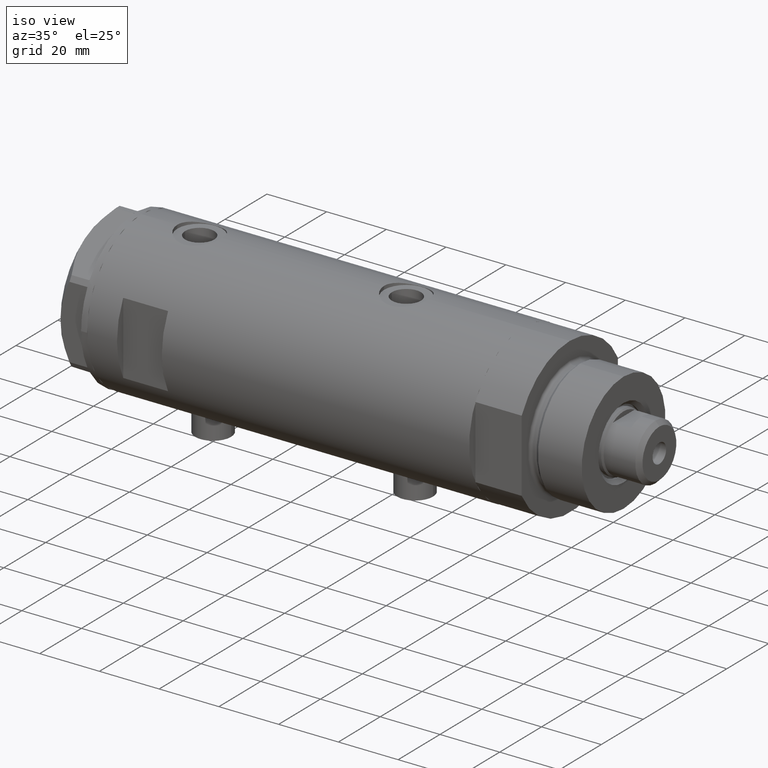
[diagram: clean part render]
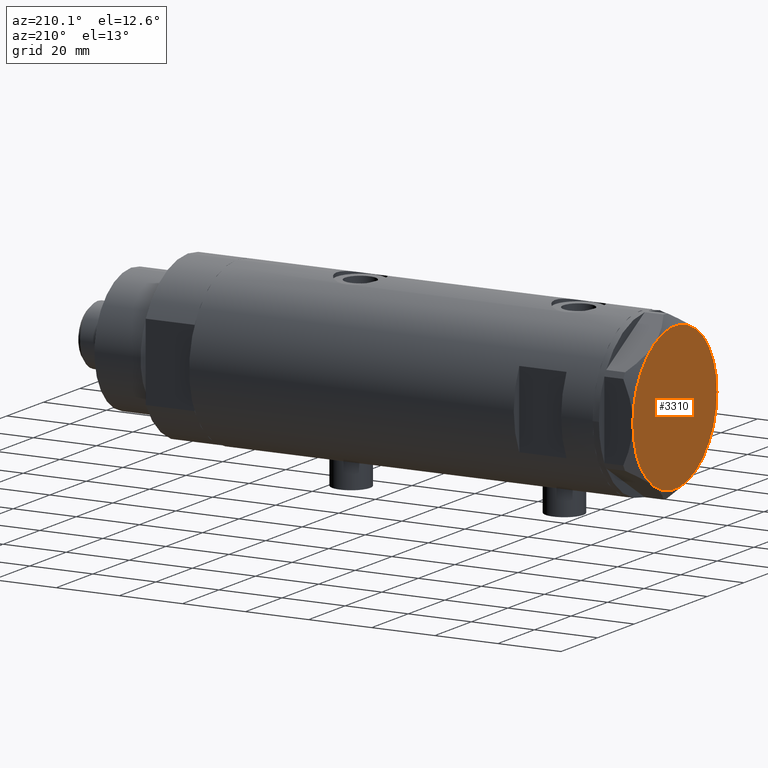
[diagram: tour spotlight — one face highlighted and labeled with its STEP entity id]
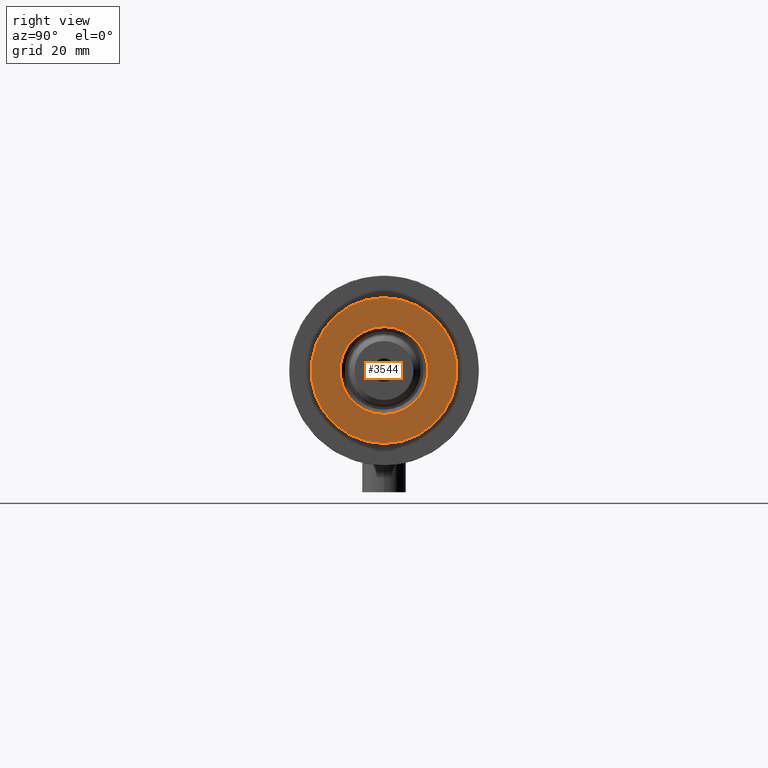
[diagram: tour spotlight — one face highlighted and labeled with its STEP entity id]
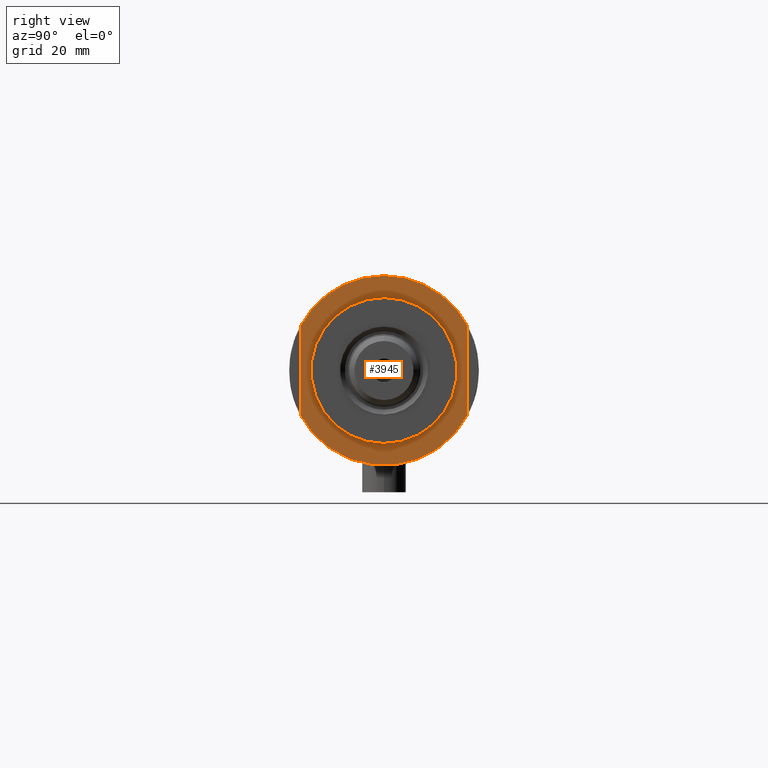
[diagram: tour spotlight — one face highlighted and labeled with its STEP entity id]
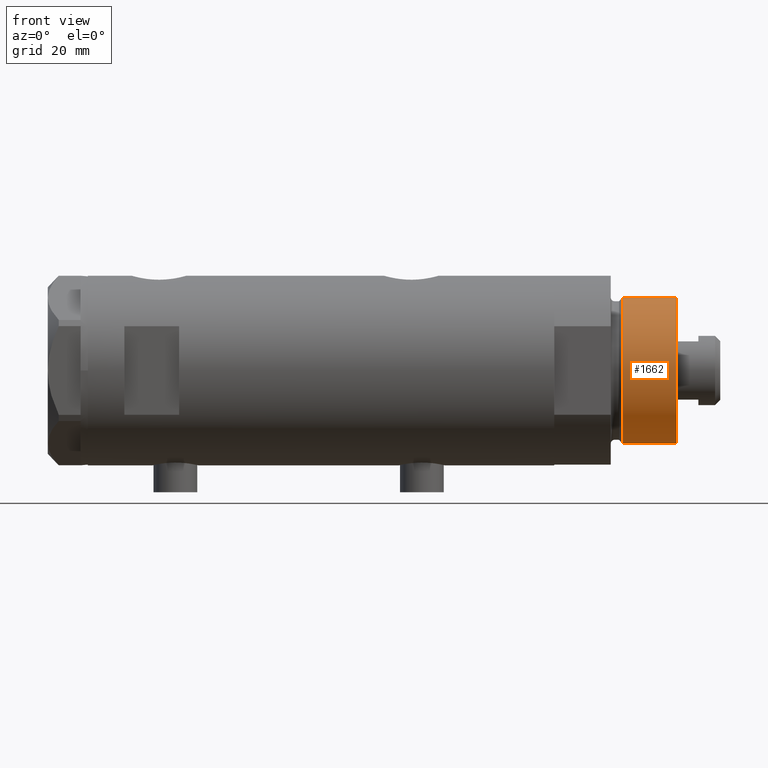
[diagram: tour spotlight — one face highlighted and labeled with its STEP entity id]
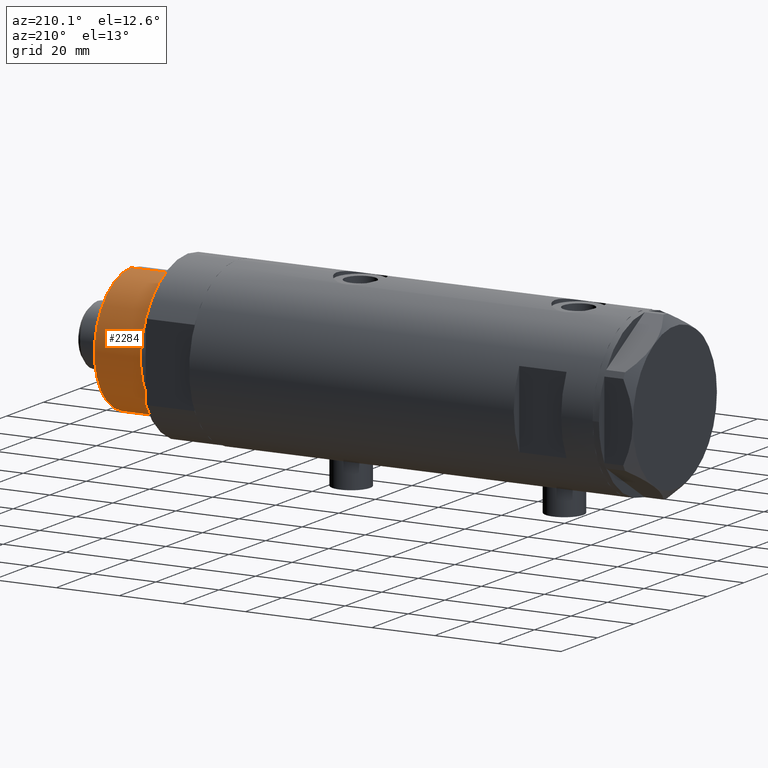
[diagram: tour spotlight — one face highlighted and labeled with its STEP entity id]
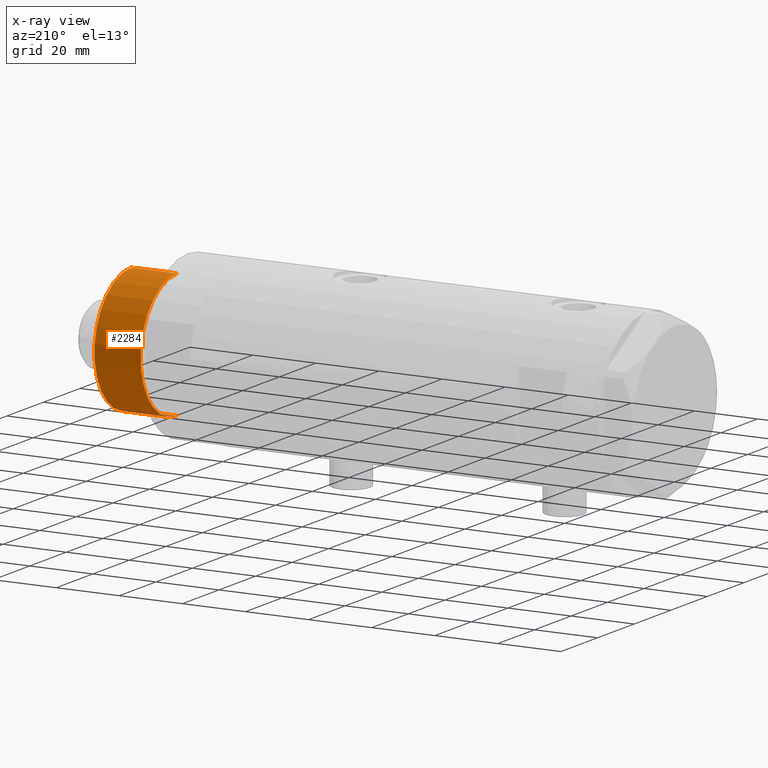
[diagram: x-ray of the same camera — body ghosted, this tour face saturated]
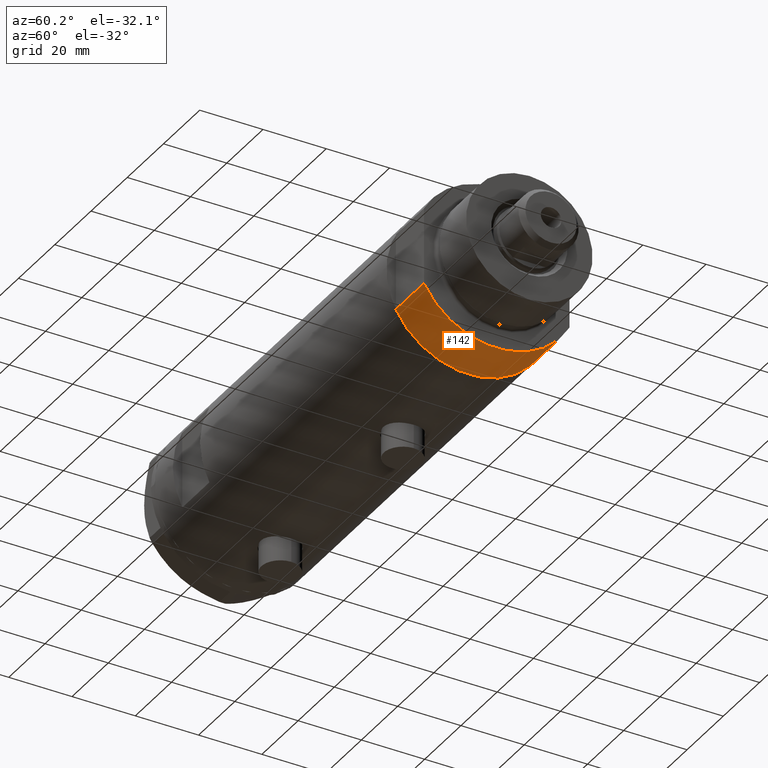
[diagram: tour spotlight — one face highlighted and labeled with its STEP entity id]
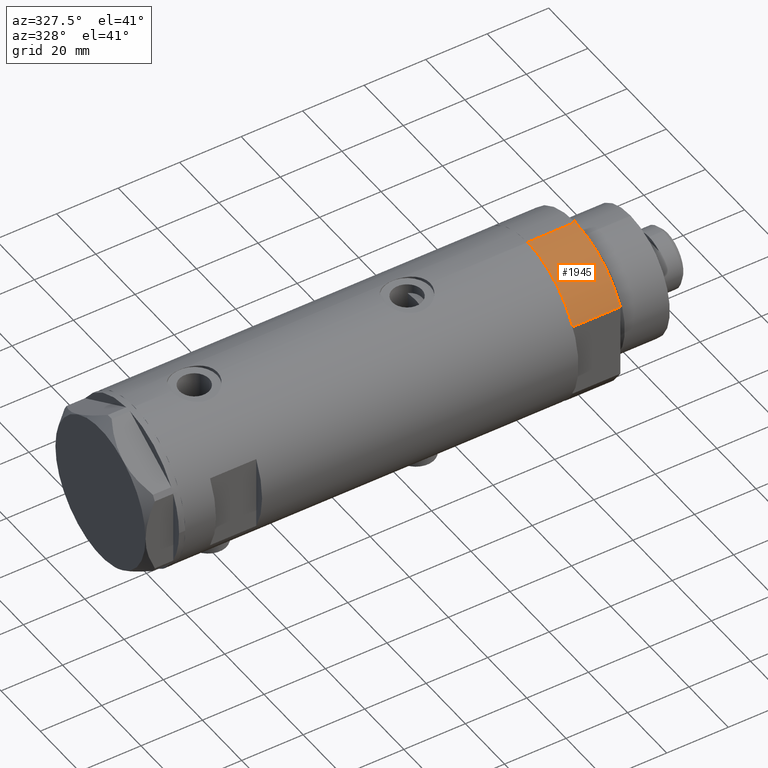
[diagram: tour spotlight — one face highlighted and labeled with its STEP entity id]
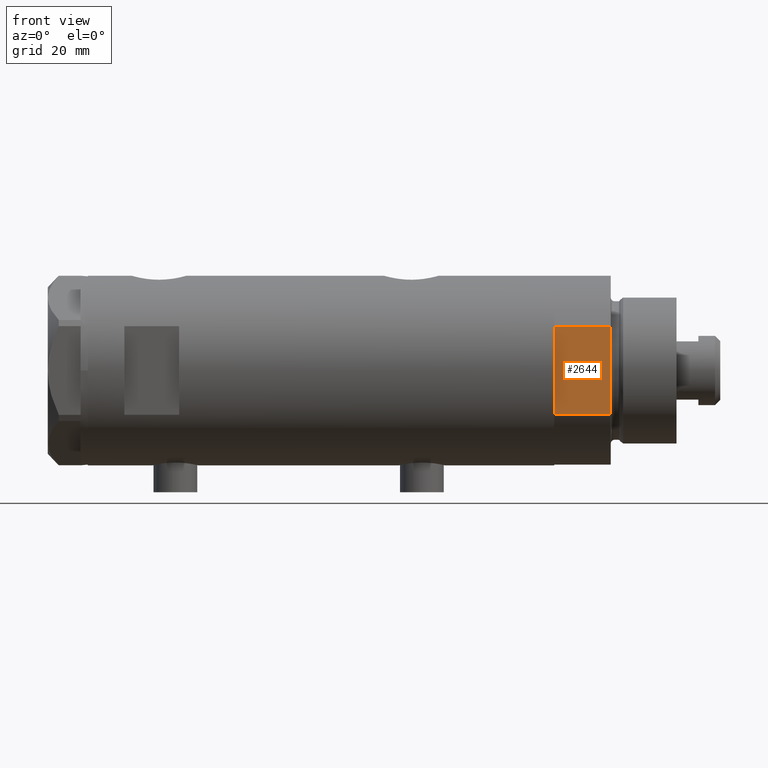
[diagram: tour spotlight — one face highlighted and labeled with its STEP entity id]
A machine part: a face-by-face anatomy tour. The part has 134 B-rep faces; the first image is the clean iso view, then the 8 largest visible faces are spotlighted one at a time (largest first), each with its STEP entity span.

Face 1 — auxiliary view, entity #3310. In plain terms, the highlighted planar face has unit normal (-1, -0, 0).
Definition (entity closure, byte-faithful):
#209 = CIRCLE ( 'NONE', #4621, 23.00000000000004619 ) ;
#287 = CARTESIAN_POINT ( 'NONE',  ( 0.000000000000000000, 0.000000000000000000, 9.000000000000000000 ) ) ;
#288 = VERTEX_POINT ( 'NONE', #4019 ) ;
#321 = ORIENTED_EDGE ( 'NONE', *, *, #4393, .T. ) ;
#322 = EDGE_CURVE ( 'NONE', #2935, #3134, #4452, .T. ) ;
#357 = DIRECTION ( 'NONE',  ( 0.000000000000000000, 0.000000000000000000, 1.000000000000000000 ) ) ;
#380 = FACE_OUTER_BOUND ( 'NONE', #1587, .T. ) ;
#682 = DIRECTION ( 'NONE',  ( 1.000000000000000000, 0.000000000000000000, 0.000000000000000000 ) ) ;
#768 = CIRCLE ( 'NONE', #4006, 23.00000000000004619 ) ;
#856 = DIRECTION ( 'NONE',  ( 1.000000000000000000, 0.000000000000000000, 0.000000000000000000 ) ) ;
#944 = EDGE_CURVE ( 'NONE', #4516, #288, #995, .T. ) ;
#995 = CIRCLE ( 'NONE', #2346, 23.00000000000004619 ) ;
#1012 = EDGE_CURVE ( 'NONE', #288, #3992, #4841, .T. ) ;
#1145 = DIRECTION ( 'NONE',  ( 0.000000000000000000, 0.000000000000000000, 1.000000000000000000 ) ) ;
#1187 = EDGE_CURVE ( 'NONE', #3134, #2269, #209, .T. ) ;
#1481 = ORIENTED_EDGE ( 'NONE', *, *, #1012, .T. ) ;
#1521 = AXIS2_PLACEMENT_3D ( 'NONE', #3432, #3402, #4186 ) ;
#1535 = CARTESIAN_POINT ( 'NONE',  ( 0.000000000000000000, 0.000000000000000000, 9.000000000000000000 ) ) ;
#1587 = EDGE_LOOP ( 'NONE', ( #2373, #2905, #3850, #1481, #321, #4648 ) ) ;
#1894 = PLANE ( 'NONE',  #4808 ) ;
#1927 = EDGE_CURVE ( 'NONE', #2269, #4516, #768, .T. ) ;
#2016 = CARTESIAN_POINT ( 'NONE',  ( 0.000000000000000000, 0.000000000000000000, 9.000000000000000000 ) ) ;
#2151 = CARTESIAN_POINT ( 'NONE',  ( 11.49999999999990408, 19.91858428704219364, 9.000000000000000000 ) ) ;
#2269 = VERTEX_POINT ( 'NONE', #2858 ) ;
#2319 = CARTESIAN_POINT ( 'NONE',  ( 11.50000000000018296, -19.91858428704203732, 9.000000000000000000 ) ) ;
#2326 = CIRCLE ( 'NONE', #1521, 23.00000000000004619 ) ;
#2346 = AXIS2_PLACEMENT_3D ( 'NONE', #2016, #3562, #856 ) ;
#2373 = ORIENTED_EDGE ( 'NONE', *, *, #1187, .T. ) ;
#2449 = CARTESIAN_POINT ( 'NONE',  ( -11.49999999999990585, -19.91858428704219364, 9.000000000000000000 ) ) ;
#2858 = CARTESIAN_POINT ( 'NONE',  ( 22.99999999999995026, 2.373657066004705010E-13, 9.000000000000000000 ) ) ;
#2905 = ORIENTED_EDGE ( 'NONE', *, *, #1927, .T. ) ;
#2917 = CARTESIAN_POINT ( 'NONE',  ( 0.000000000000000000, 0.000000000000000000, 9.000000000000000000 ) ) ;
#2935 = VERTEX_POINT ( 'NONE', #2449 ) ;
#3029 = CARTESIAN_POINT ( 'NONE',  ( 0.000000000000000000, 0.000000000000000000, 9.000000000000000000 ) ) ;
#3034 = DIRECTION ( 'NONE',  ( 0.000000000000000000, 0.000000000000000000, 1.000000000000000000 ) ) ;
#3134 = VERTEX_POINT ( 'NONE', #2319 ) ;
#3208 = DIRECTION ( 'NONE',  ( 1.000000000000000000, 0.000000000000000000, 0.000000000000000000 ) ) ;
#3274 = AXIS2_PLACEMENT_3D ( 'NONE', #1535, #357, #3394 ) ;
#3310 = ADVANCED_FACE ( 'NONE', ( #380 ), #1894, .T. ) ;
#3360 = AXIS2_PLACEMENT_3D ( 'NONE', #4561, #3034, #4174 ) ;
#3394 = DIRECTION ( 'NONE',  ( 1.000000000000000000, 0.000000000000000000, 0.000000000000000000 ) ) ;
#3402 = DIRECTION ( 'NONE',  ( 0.000000000000000000, 0.000000000000000000, 1.000000000000000000 ) ) ;
#3432 = CARTESIAN_POINT ( 'NONE',  ( 0.000000000000000000, 0.000000000000000000, 9.000000000000000000 ) ) ;
#3562 = DIRECTION ( 'NONE',  ( 0.000000000000000000, 0.000000000000000000, 1.000000000000000000 ) ) ;
#3701 = DIRECTION ( 'NONE',  ( 0.000000000000000000, 0.000000000000000000, 1.000000000000000000 ) ) ;
#3850 = ORIENTED_EDGE ( 'NONE', *, *, #944, .T. ) ;
#3955 = DIRECTION ( 'NONE',  ( 0.000000000000000000, 0.000000000000000000, 1.000000000000000000 ) ) ;
#3992 = VERTEX_POINT ( 'NONE', #4013 ) ;
#4006 = AXIS2_PLACEMENT_3D ( 'NONE', #2917, #3955, #3208 ) ;
#4013 = CARTESIAN_POINT ( 'NONE',  ( -23.00000000000004619, -8.112498833180673323E-14, 9.000000000000000000 ) ) ;
#4019 = CARTESIAN_POINT ( 'NONE',  ( -11.50000000000004441, 19.91858428704211548, 9.000000000000000000 ) ) ;
#4170 = DIRECTION ( 'NONE',  ( 1.000000000000000000, 0.000000000000000000, -0.000000000000000000 ) ) ;
#4174 = DIRECTION ( 'NONE',  ( 1.000000000000000000, 0.000000000000000000, 0.000000000000000000 ) ) ;
#4186 = DIRECTION ( 'NONE',  ( 1.000000000000000000, 0.000000000000000000, 0.000000000000000000 ) ) ;
#4393 = EDGE_CURVE ( 'NONE', #3992, #2935, #2326, .T. ) ;
#4452 = CIRCLE ( 'NONE', #3274, 23.00000000000004619 ) ;
#4516 = VERTEX_POINT ( 'NONE', #2151 ) ;
#4561 = CARTESIAN_POINT ( 'NONE',  ( 0.000000000000000000, 0.000000000000000000, 9.000000000000000000 ) ) ;
#4621 = AXIS2_PLACEMENT_3D ( 'NONE', #287, #3701, #682 ) ;
#4648 = ORIENTED_EDGE ( 'NONE', *, *, #322, .T. ) ;
#4808 = AXIS2_PLACEMENT_3D ( 'NONE', #3029, #1145, #4170 ) ;
#4841 = CIRCLE ( 'NONE', #3360, 23.00000000000004619 ) ;

Face 2 — right view, entity #3544. In plain terms, the highlighted planar face has unit normal (1, 0, -0).
Definition (entity closure, byte-faithful):
#245 = FACE_OUTER_BOUND ( 'NONE', #2551, .T. ) ;
#259 = CIRCLE ( 'NONE', #2312, 12.05000000000000426 ) ;
#336 = CARTESIAN_POINT ( 'NONE',  ( 12.05000000000000426, 0.000000000000000000, 33.50000000000000000 ) ) ;
#378 = EDGE_CURVE ( 'NONE', #2653, #4059, #595, .T. ) ;
#528 = ORIENTED_EDGE ( 'NONE', *, *, #2534, .T. ) ;
#576 = CIRCLE ( 'NONE', #2712, 19.99999999999999645 ) ;
#595 = CIRCLE ( 'NONE', #2263, 12.05000000000000426 ) ;
#670 = ORIENTED_EDGE ( 'NONE', *, *, #4546, .T. ) ;
#1100 = CARTESIAN_POINT ( 'NONE',  ( 0.000000000000000000, 0.000000000000000000, 33.50000000000000000 ) ) ;
#1241 = DIRECTION ( 'NONE',  ( -0.000000000000000000, -0.000000000000000000, -1.000000000000000000 ) ) ;
#1320 = AXIS2_PLACEMENT_3D ( 'NONE', #3281, #4768, #2615 ) ;
#1336 = CARTESIAN_POINT ( 'NONE',  ( -12.05000000000000426, 1.475699392972560823E-15, 33.50000000000000000 ) ) ;
#1393 = VERTEX_POINT ( 'NONE', #1406 ) ;
#1406 = CARTESIAN_POINT ( 'NONE',  ( -19.99999999999999645, 0.000000000000000000, 33.50000000000000000 ) ) ;
#1554 = ORIENTED_EDGE ( 'NONE', *, *, #378, .T. ) ;
#1744 = PLANE ( 'NONE',  #4657 ) ;
#2104 = FACE_BOUND ( 'NONE', #3764, .T. ) ;
#2154 = CARTESIAN_POINT ( 'NONE',  ( 0.000000000000000000, 0.000000000000000000, 33.50000000000000000 ) ) ;
#2263 = AXIS2_PLACEMENT_3D ( 'NONE', #1100, #2609, #3775 ) ;
#2312 = AXIS2_PLACEMENT_3D ( 'NONE', #4601, #1241, #3888 ) ;
#2527 = DIRECTION ( 'NONE',  ( 0.000000000000000000, 0.000000000000000000, 1.000000000000000000 ) ) ;
#2534 = EDGE_CURVE ( 'NONE', #3514, #1393, #4319, .T. ) ;
#2551 = EDGE_LOOP ( 'NONE', ( #670, #528 ) ) ;
#2609 = DIRECTION ( 'NONE',  ( -0.000000000000000000, -0.000000000000000000, -1.000000000000000000 ) ) ;
#2615 = DIRECTION ( 'NONE',  ( 1.000000000000000000, 0.000000000000000000, 0.000000000000000000 ) ) ;
#2653 = VERTEX_POINT ( 'NONE', #336 ) ;
#2712 = AXIS2_PLACEMENT_3D ( 'NONE', #4649, #3951, #4611 ) ;
#3281 = CARTESIAN_POINT ( 'NONE',  ( 0.000000000000000000, 0.000000000000000000, 33.50000000000000000 ) ) ;
#3514 = VERTEX_POINT ( 'NONE', #4161 ) ;
#3544 = ADVANCED_FACE ( 'NONE', ( #2104, #245 ), #1744, .T. ) ;
#3654 = DIRECTION ( 'NONE',  ( 1.000000000000000000, 0.000000000000000000, -0.000000000000000000 ) ) ;
#3677 = EDGE_CURVE ( 'NONE', #4059, #2653, #259, .T. ) ;
#3764 = EDGE_LOOP ( 'NONE', ( #1554, #4175 ) ) ;
#3775 = DIRECTION ( 'NONE',  ( 1.000000000000000000, 0.000000000000000000, 0.000000000000000000 ) ) ;
#3888 = DIRECTION ( 'NONE',  ( 1.000000000000000000, 0.000000000000000000, 0.000000000000000000 ) ) ;
#3951 = DIRECTION ( 'NONE',  ( 0.000000000000000000, 0.000000000000000000, 1.000000000000000000 ) ) ;
#4059 = VERTEX_POINT ( 'NONE', #1336 ) ;
#4161 = CARTESIAN_POINT ( 'NONE',  ( 19.99999999999999645, 2.449293598294706119E-15, 33.50000000000000000 ) ) ;
#4175 = ORIENTED_EDGE ( 'NONE', *, *, #3677, .T. ) ;
#4319 = CIRCLE ( 'NONE', #1320, 19.99999999999999645 ) ;
#4546 = EDGE_CURVE ( 'NONE', #1393, #3514, #576, .T. ) ;
#4601 = CARTESIAN_POINT ( 'NONE',  ( 0.000000000000000000, 0.000000000000000000, 33.50000000000000000 ) ) ;
#4611 = DIRECTION ( 'NONE',  ( 1.000000000000000000, 0.000000000000000000, 0.000000000000000000 ) ) ;
#4649 = CARTESIAN_POINT ( 'NONE',  ( 0.000000000000000000, 0.000000000000000000, 33.50000000000000000 ) ) ;
#4657 = AXIS2_PLACEMENT_3D ( 'NONE', #2154, #2527, #3654 ) ;
#4768 = DIRECTION ( 'NONE',  ( 0.000000000000000000, 0.000000000000000000, 1.000000000000000000 ) ) ;

Face 3 — right view, entity #3945. In plain terms, the highlighted planar face has unit normal (1, 0, -0).
Definition (entity closure, byte-faithful):
#94 = CIRCLE ( 'NONE', #1912, 26.00000000000000355 ) ;
#101 = CIRCLE ( 'NONE', #4130, 20.00000000000000000 ) ;
#163 = ORIENTED_EDGE ( 'NONE', *, *, #4156, .T. ) ;
#218 = DIRECTION ( 'NONE',  ( 1.000000000000000000, 0.000000000000000000, 0.000000000000000000 ) ) ;
#393 = VERTEX_POINT ( 'NONE', #778 ) ;
#522 = DIRECTION ( 'NONE',  ( 1.000000000000000000, 0.000000000000000000, 0.000000000000000000 ) ) ;
#544 = DIRECTION ( 'NONE',  ( 0.000000000000000000, 0.000000000000000000, 1.000000000000000000 ) ) ;
#635 = CARTESIAN_POINT ( 'NONE',  ( 0.000000000000000000, 0.000000000000000000, 15.50000000000000000 ) ) ;
#649 = CIRCLE ( 'NONE', #4587, 20.00000000000000000 ) ;
#690 = ORIENTED_EDGE ( 'NONE', *, *, #1704, .F. ) ;
#778 = CARTESIAN_POINT ( 'NONE',  ( -26.00000000000000355, 0.000000000000000000, 15.50000000000000000 ) ) ;
#788 = DIRECTION ( 'NONE',  ( 0.000000000000000000, 0.000000000000000000, 1.000000000000000000 ) ) ;
#790 = CARTESIAN_POINT ( 'NONE',  ( 20.00000000000000000, 0.000000000000000000, 15.50000000000000000 ) ) ;
#875 = EDGE_LOOP ( 'NONE', ( #163, #1948 ) ) ;
#895 = CARTESIAN_POINT ( 'NONE',  ( -12.12435565298215145, 23.00000000000000355, 15.50000000000000000 ) ) ;
#896 = DIRECTION ( 'NONE',  ( 0.000000000000000000, 0.000000000000000000, 1.000000000000000000 ) ) ;
#915 = CARTESIAN_POINT ( 'NONE',  ( -12.12435565298214613, 23.00000000000000355, 15.50000000000000000 ) ) ;
#953 = DIRECTION ( 'NONE',  ( 1.000000000000000000, 0.000000000000000000, 0.000000000000000000 ) ) ;
#978 = DIRECTION ( 'NONE',  ( 1.000000000000000000, 0.000000000000000000, 0.000000000000000000 ) ) ;
#1041 = ORIENTED_EDGE ( 'NONE', *, *, #2780, .T. ) ;
#1392 = CARTESIAN_POINT ( 'NONE',  ( 12.12435565298215323, -22.99999999999999645, 15.50000000000000000 ) ) ;
#1639 = EDGE_CURVE ( 'NONE', #1834, #1943, #4284, .T. ) ;
#1704 = EDGE_CURVE ( 'NONE', #2333, #2529, #3609, .T. ) ;
#1751 = CIRCLE ( 'NONE', #3738, 26.00000000000000355 ) ;
#1799 = CARTESIAN_POINT ( 'NONE',  ( -12.12435565298215323, -22.99999999999999645, 15.50000000000000000 ) ) ;
#1809 = CARTESIAN_POINT ( 'NONE',  ( -20.00000000000000000, 2.449293598294706513E-15, 15.50000000000000000 ) ) ;
#1834 = VERTEX_POINT ( 'NONE', #915 ) ;
#1912 = AXIS2_PLACEMENT_3D ( 'NONE', #2109, #544, #3191 ) ;
#1943 = VERTEX_POINT ( 'NONE', #4027 ) ;
#1948 = ORIENTED_EDGE ( 'NONE', *, *, #3036, .T. ) ;
#2006 = PLANE ( 'NONE',  #3412 ) ;
#2052 = ORIENTED_EDGE ( 'NONE', *, *, #4539, .T. ) ;
#2109 = CARTESIAN_POINT ( 'NONE',  ( 0.000000000000000000, 0.000000000000000000, 15.50000000000000000 ) ) ;
#2129 = DIRECTION ( 'NONE',  ( -1.000000000000000000, -0.000000000000000000, -0.000000000000000000 ) ) ;
#2239 = DIRECTION ( 'NONE',  ( -0.000000000000000000, -0.000000000000000000, -1.000000000000000000 ) ) ;
#2333 = VERTEX_POINT ( 'NONE', #1392 ) ;
#2384 = DIRECTION ( 'NONE',  ( 1.000000000000000000, 0.000000000000000000, -0.000000000000000000 ) ) ;
#2397 = DIRECTION ( 'NONE',  ( -0.000000000000000000, -0.000000000000000000, -1.000000000000000000 ) ) ;
#2400 = CIRCLE ( 'NONE', #2956, 26.00000000000000355 ) ;
#2446 = CARTESIAN_POINT ( 'NONE',  ( 0.000000000000000000, 0.000000000000000000, 15.50000000000000000 ) ) ;
#2529 = VERTEX_POINT ( 'NONE', #1799 ) ;
#2629 = EDGE_LOOP ( 'NONE', ( #690, #1041, #3483, #2052, #4131 ) ) ;
#2671 = CARTESIAN_POINT ( 'NONE',  ( 0.000000000000000000, 0.000000000000000000, 15.50000000000000000 ) ) ;
#2773 = FACE_BOUND ( 'NONE', #875, .T. ) ;
#2780 = EDGE_CURVE ( 'NONE', #2333, #1943, #94, .T. ) ;
#2956 = AXIS2_PLACEMENT_3D ( 'NONE', #2671, #788, #3454 ) ;
#3036 = EDGE_CURVE ( 'NONE', #3406, #4428, #649, .T. ) ;
#3135 = VECTOR ( 'NONE', #522, 1000.000000000000000 ) ;
#3191 = DIRECTION ( 'NONE',  ( 1.000000000000000000, 0.000000000000000000, 0.000000000000000000 ) ) ;
#3406 = VERTEX_POINT ( 'NONE', #1809 ) ;
#3412 = AXIS2_PLACEMENT_3D ( 'NONE', #4241, #896, #2384 ) ;
#3440 = FACE_OUTER_BOUND ( 'NONE', #2629, .T. ) ;
#3454 = DIRECTION ( 'NONE',  ( 1.000000000000000000, 0.000000000000000000, 0.000000000000000000 ) ) ;
#3483 = ORIENTED_EDGE ( 'NONE', *, *, #1639, .F. ) ;
#3609 = LINE ( 'NONE', #4370, #3689 ) ;
#3689 = VECTOR ( 'NONE', #2129, 1000.000000000000000 ) ;
#3738 = AXIS2_PLACEMENT_3D ( 'NONE', #4852, #4139, #978 ) ;
#3945 = ADVANCED_FACE ( 'NONE', ( #2773, #3440 ), #2006, .T. ) ;
#4027 = CARTESIAN_POINT ( 'NONE',  ( 12.12435565298214790, 23.00000000000000355, 15.50000000000000000 ) ) ;
#4130 = AXIS2_PLACEMENT_3D ( 'NONE', #635, #2239, #218 ) ;
#4131 = ORIENTED_EDGE ( 'NONE', *, *, #4132, .T. ) ;
#4132 = EDGE_CURVE ( 'NONE', #393, #2529, #1751, .T. ) ;
#4139 = DIRECTION ( 'NONE',  ( 0.000000000000000000, 0.000000000000000000, 1.000000000000000000 ) ) ;
#4156 = EDGE_CURVE ( 'NONE', #4428, #3406, #101, .T. ) ;
#4241 = CARTESIAN_POINT ( 'NONE',  ( 0.000000000000000000, 0.000000000000000000, 15.50000000000000000 ) ) ;
#4284 = LINE ( 'NONE', #895, #3135 ) ;
#4370 = CARTESIAN_POINT ( 'NONE',  ( -12.12435565298215145, -22.99999999999999645, 15.50000000000000000 ) ) ;
#4428 = VERTEX_POINT ( 'NONE', #790 ) ;
#4539 = EDGE_CURVE ( 'NONE', #1834, #393, #2400, .T. ) ;
#4587 = AXIS2_PLACEMENT_3D ( 'NONE', #2446, #2397, #953 ) ;
#4852 = CARTESIAN_POINT ( 'NONE',  ( 0.000000000000000000, 0.000000000000000000, 15.50000000000000000 ) ) ;

Face 4 — front view, entity #1662. In plain terms, the highlighted cylindrical surface (partial cylindrical patch) has radius 20 mm, axis along (-1, -0, 0).
Definition (entity closure, byte-faithful):
#79 = ORIENTED_EDGE ( 'NONE', *, *, #3388, .T. ) ;
#130 = CARTESIAN_POINT ( 'NONE',  ( 0.000000000000000000, 0.000000000000000000, 18.87384048104053846 ) ) ;
#395 = DIRECTION ( 'NONE',  ( -1.000000000000000000, 0.000000000000000000, 0.000000000000000000 ) ) ;
#576 = CIRCLE ( 'NONE', #2712, 19.99999999999999645 ) ;
#696 = ORIENTED_EDGE ( 'NONE', *, *, #3050, .F. ) ;
#824 = CARTESIAN_POINT ( 'NONE',  ( -19.99999999999999645, 0.000000000000000000, 18.87384048104053846 ) ) ;
#891 = ORIENTED_EDGE ( 'NONE', *, *, #4546, .F. ) ;
#961 = AXIS2_PLACEMENT_3D ( 'NONE', #130, #2079, #1626 ) ;
#1072 = VERTEX_POINT ( 'NONE', #824 ) ;
#1190 = ORIENTED_EDGE ( 'NONE', *, *, #4650, .T. ) ;
#1272 = DIRECTION ( 'NONE',  ( -0.000000000000000000, -0.000000000000000000, -1.000000000000000000 ) ) ;
#1393 = VERTEX_POINT ( 'NONE', #1406 ) ;
#1406 = CARTESIAN_POINT ( 'NONE',  ( -19.99999999999999645, 0.000000000000000000, 33.50000000000000000 ) ) ;
#1483 = CARTESIAN_POINT ( 'NONE',  ( 0.000000000000000000, 0.000000000000000000, 33.50000000000000000 ) ) ;
#1552 = CARTESIAN_POINT ( 'NONE',  ( 19.99999999999999645, 2.449293598294706119E-15, 18.87384048104053846 ) ) ;
#1626 = DIRECTION ( 'NONE',  ( 1.000000000000000000, 0.000000000000000000, 0.000000000000000000 ) ) ;
#1662 = ADVANCED_FACE ( 'NONE', ( #1832 ), #1908, .T. ) ;
#1688 = LINE ( 'NONE', #2065, #2703 ) ;
#1832 = FACE_OUTER_BOUND ( 'NONE', #3697, .T. ) ;
#1908 = CYLINDRICAL_SURFACE ( 'NONE', #4770, 19.99999999999999645 ) ;
#1928 = DIRECTION ( 'NONE',  ( -0.000000000000000000, -0.000000000000000000, -1.000000000000000000 ) ) ;
#2065 = CARTESIAN_POINT ( 'NONE',  ( 19.99999999999999645, 2.449293598294706119E-15, 33.50000000000000000 ) ) ;
#2079 = DIRECTION ( 'NONE',  ( -0.000000000000000000, -0.000000000000000000, 1.000000000000000000 ) ) ;
#2703 = VECTOR ( 'NONE', #1272, 1000.000000000000000 ) ;
#2712 = AXIS2_PLACEMENT_3D ( 'NONE', #4649, #3951, #4611 ) ;
#2717 = VECTOR ( 'NONE', #1928, 1000.000000000000000 ) ;
#3045 = LINE ( 'NONE', #4542, #2717 ) ;
#3050 = EDGE_CURVE ( 'NONE', #3514, #4435, #1688, .T. ) ;
#3336 = DIRECTION ( 'NONE',  ( -0.000000000000000000, -0.000000000000000000, -1.000000000000000000 ) ) ;
#3388 = EDGE_CURVE ( 'NONE', #1072, #4435, #3969, .T. ) ;
#3514 = VERTEX_POINT ( 'NONE', #4161 ) ;
#3697 = EDGE_LOOP ( 'NONE', ( #696, #891, #1190, #79 ) ) ;
#3951 = DIRECTION ( 'NONE',  ( 0.000000000000000000, 0.000000000000000000, 1.000000000000000000 ) ) ;
#3969 = CIRCLE ( 'NONE', #961, 19.99999999999999645 ) ;
#4161 = CARTESIAN_POINT ( 'NONE',  ( 19.99999999999999645, 2.449293598294706119E-15, 33.50000000000000000 ) ) ;
#4435 = VERTEX_POINT ( 'NONE', #1552 ) ;
#4542 = CARTESIAN_POINT ( 'NONE',  ( -19.99999999999999645, 0.000000000000000000, 33.50000000000000000 ) ) ;
#4546 = EDGE_CURVE ( 'NONE', #1393, #3514, #576, .T. ) ;
#4611 = DIRECTION ( 'NONE',  ( 1.000000000000000000, 0.000000000000000000, 0.000000000000000000 ) ) ;
#4649 = CARTESIAN_POINT ( 'NONE',  ( 0.000000000000000000, 0.000000000000000000, 33.50000000000000000 ) ) ;
#4650 = EDGE_CURVE ( 'NONE', #1393, #1072, #3045, .T. ) ;
#4770 = AXIS2_PLACEMENT_3D ( 'NONE', #1483, #3336, #395 ) ;

Face 5 — auxiliary view, entity #2284. An x-ray twin of the same camera follows (body ghosted, this face saturated) — the face is partly hidden behind the body. In plain terms, the highlighted cylindrical surface (partial cylindrical patch) has radius 20 mm, axis along (-1, -0, 0).
Definition (entity closure, byte-faithful):
#81 = DIRECTION ( 'NONE',  ( 1.000000000000000000, 0.000000000000000000, 0.000000000000000000 ) ) ;
#384 = ORIENTED_EDGE ( 'NONE', *, *, #3050, .T. ) ;
#559 = EDGE_CURVE ( 'NONE', #4435, #1072, #991, .T. ) ;
#824 = CARTESIAN_POINT ( 'NONE',  ( -19.99999999999999645, 0.000000000000000000, 18.87384048104053846 ) ) ;
#909 = CARTESIAN_POINT ( 'NONE',  ( 0.000000000000000000, 0.000000000000000000, 33.50000000000000000 ) ) ;
#991 = CIRCLE ( 'NONE', #4234, 19.99999999999999645 ) ;
#1072 = VERTEX_POINT ( 'NONE', #824 ) ;
#1202 = EDGE_LOOP ( 'NONE', ( #2302, #384, #1592, #1333 ) ) ;
#1272 = DIRECTION ( 'NONE',  ( -0.000000000000000000, -0.000000000000000000, -1.000000000000000000 ) ) ;
#1320 = AXIS2_PLACEMENT_3D ( 'NONE', #3281, #4768, #2615 ) ;
#1333 = ORIENTED_EDGE ( 'NONE', *, *, #4650, .F. ) ;
#1393 = VERTEX_POINT ( 'NONE', #1406 ) ;
#1406 = CARTESIAN_POINT ( 'NONE',  ( -19.99999999999999645, 0.000000000000000000, 33.50000000000000000 ) ) ;
#1552 = CARTESIAN_POINT ( 'NONE',  ( 19.99999999999999645, 2.449293598294706119E-15, 18.87384048104053846 ) ) ;
#1592 = ORIENTED_EDGE ( 'NONE', *, *, #559, .T. ) ;
#1688 = LINE ( 'NONE', #2065, #2703 ) ;
#1735 = DIRECTION ( 'NONE',  ( -1.000000000000000000, 0.000000000000000000, 0.000000000000000000 ) ) ;
#1928 = DIRECTION ( 'NONE',  ( -0.000000000000000000, -0.000000000000000000, -1.000000000000000000 ) ) ;
#2065 = CARTESIAN_POINT ( 'NONE',  ( 19.99999999999999645, 2.449293598294706119E-15, 33.50000000000000000 ) ) ;
#2284 = ADVANCED_FACE ( 'NONE', ( #2518 ), #2462, .T. ) ;
#2302 = ORIENTED_EDGE ( 'NONE', *, *, #2534, .F. ) ;
#2462 = CYLINDRICAL_SURFACE ( 'NONE', #3450, 19.99999999999999645 ) ;
#2518 = FACE_OUTER_BOUND ( 'NONE', #1202, .T. ) ;
#2534 = EDGE_CURVE ( 'NONE', #3514, #1393, #4319, .T. ) ;
#2615 = DIRECTION ( 'NONE',  ( 1.000000000000000000, 0.000000000000000000, 0.000000000000000000 ) ) ;
#2703 = VECTOR ( 'NONE', #1272, 1000.000000000000000 ) ;
#2717 = VECTOR ( 'NONE', #1928, 1000.000000000000000 ) ;
#3045 = LINE ( 'NONE', #4542, #2717 ) ;
#3050 = EDGE_CURVE ( 'NONE', #3514, #4435, #1688, .T. ) ;
#3233 = CARTESIAN_POINT ( 'NONE',  ( 0.000000000000000000, 0.000000000000000000, 18.87384048104053846 ) ) ;
#3281 = CARTESIAN_POINT ( 'NONE',  ( 0.000000000000000000, 0.000000000000000000, 33.50000000000000000 ) ) ;
#3450 = AXIS2_PLACEMENT_3D ( 'NONE', #909, #4694, #1735 ) ;
#3514 = VERTEX_POINT ( 'NONE', #4161 ) ;
#3843 = DIRECTION ( 'NONE',  ( -0.000000000000000000, -0.000000000000000000, 1.000000000000000000 ) ) ;
#4161 = CARTESIAN_POINT ( 'NONE',  ( 19.99999999999999645, 2.449293598294706119E-15, 33.50000000000000000 ) ) ;
#4234 = AXIS2_PLACEMENT_3D ( 'NONE', #3233, #3843, #81 ) ;
#4319 = CIRCLE ( 'NONE', #1320, 19.99999999999999645 ) ;
#4435 = VERTEX_POINT ( 'NONE', #1552 ) ;
#4542 = CARTESIAN_POINT ( 'NONE',  ( -19.99999999999999645, 0.000000000000000000, 33.50000000000000000 ) ) ;
#4650 = EDGE_CURVE ( 'NONE', #1393, #1072, #3045, .T. ) ;
#4694 = DIRECTION ( 'NONE',  ( -0.000000000000000000, -0.000000000000000000, -1.000000000000000000 ) ) ;
#4768 = DIRECTION ( 'NONE',  ( 0.000000000000000000, 0.000000000000000000, 1.000000000000000000 ) ) ;

Face 6 — auxiliary view, entity #142. In plain terms, the highlighted cylindrical surface (partial cylindrical patch) has radius 26 mm, axis along (-1, -0, 0).
Definition (entity closure, byte-faithful):
#64 = ORIENTED_EDGE ( 'NONE', *, *, #2780, .F. ) ;
#89 = EDGE_LOOP ( 'NONE', ( #64, #4818, #1479, #2899 ) ) ;
#94 = CIRCLE ( 'NONE', #1912, 26.00000000000000355 ) ;
#142 = ADVANCED_FACE ( 'NONE', ( #3039 ), #4152, .T. ) ;
#363 = CARTESIAN_POINT ( 'NONE',  ( 0.000000000000000000, 0.000000000000000000, 15.50000000000000000 ) ) ;
#544 = DIRECTION ( 'NONE',  ( 0.000000000000000000, 0.000000000000000000, 1.000000000000000000 ) ) ;
#546 = DIRECTION ( 'NONE',  ( 0.000000000000000000, 0.000000000000000000, 1.000000000000000000 ) ) ;
#567 = AXIS2_PLACEMENT_3D ( 'NONE', #1752, #546, #2133 ) ;
#799 = LINE ( 'NONE', #2879, #1238 ) ;
#1105 = DIRECTION ( 'NONE',  ( -0.000000000000000000, -0.000000000000000000, -1.000000000000000000 ) ) ;
#1179 = DIRECTION ( 'NONE',  ( -1.000000000000000000, 0.000000000000000000, 0.000000000000000000 ) ) ;
#1238 = VECTOR ( 'NONE', #1338, 1000.000000000000000 ) ;
#1338 = DIRECTION ( 'NONE',  ( -0.000000000000000000, -0.000000000000000000, 1.000000000000000000 ) ) ;
#1392 = CARTESIAN_POINT ( 'NONE',  ( 12.12435565298215323, -22.99999999999999645, 15.50000000000000000 ) ) ;
#1479 = ORIENTED_EDGE ( 'NONE', *, *, #4009, .T. ) ;
#1752 = CARTESIAN_POINT ( 'NONE',  ( 0.000000000000000000, 0.000000000000000000, 0.000000000000000000 ) ) ;
#1859 = AXIS2_PLACEMENT_3D ( 'NONE', #363, #1105, #1179 ) ;
#1912 = AXIS2_PLACEMENT_3D ( 'NONE', #2109, #544, #3191 ) ;
#1943 = VERTEX_POINT ( 'NONE', #4027 ) ;
#2109 = CARTESIAN_POINT ( 'NONE',  ( 0.000000000000000000, 0.000000000000000000, 15.50000000000000000 ) ) ;
#2133 = DIRECTION ( 'NONE',  ( 1.000000000000000000, 0.000000000000000000, 0.000000000000000000 ) ) ;
#2333 = VERTEX_POINT ( 'NONE', #1392 ) ;
#2414 = CARTESIAN_POINT ( 'NONE',  ( 12.12435565298214080, 23.00000000000000355, 0.000000000000000000 ) ) ;
#2502 = EDGE_CURVE ( 'NONE', #2998, #2333, #799, .T. ) ;
#2780 = EDGE_CURVE ( 'NONE', #2333, #1943, #94, .T. ) ;
#2879 = CARTESIAN_POINT ( 'NONE',  ( 12.12435565298215323, -22.99999999999999645, 0.000000000000000000 ) ) ;
#2899 = ORIENTED_EDGE ( 'NONE', *, *, #3076, .T. ) ;
#2937 = LINE ( 'NONE', #4460, #3553 ) ;
#2952 = CIRCLE ( 'NONE', #567, 26.00000000000000355 ) ;
#2998 = VERTEX_POINT ( 'NONE', #3630 ) ;
#3039 = FACE_OUTER_BOUND ( 'NONE', #89, .T. ) ;
#3076 = EDGE_CURVE ( 'NONE', #4637, #1943, #2937, .T. ) ;
#3191 = DIRECTION ( 'NONE',  ( 1.000000000000000000, 0.000000000000000000, 0.000000000000000000 ) ) ;
#3553 = VECTOR ( 'NONE', #4739, 1000.000000000000000 ) ;
#3630 = CARTESIAN_POINT ( 'NONE',  ( 12.12435565298215323, -22.99999999999999645, 0.000000000000000000 ) ) ;
#4009 = EDGE_CURVE ( 'NONE', #2998, #4637, #2952, .T. ) ;
#4027 = CARTESIAN_POINT ( 'NONE',  ( 12.12435565298214790, 23.00000000000000355, 15.50000000000000000 ) ) ;
#4152 = CYLINDRICAL_SURFACE ( 'NONE', #1859, 26.00000000000000355 ) ;
#4460 = CARTESIAN_POINT ( 'NONE',  ( 12.12435565298215323, 23.00000000000000355, 0.000000000000000000 ) ) ;
#4637 = VERTEX_POINT ( 'NONE', #2414 ) ;
#4739 = DIRECTION ( 'NONE',  ( -0.000000000000000000, -0.000000000000000000, 1.000000000000000000 ) ) ;
#4818 = ORIENTED_EDGE ( 'NONE', *, *, #2502, .F. ) ;

Face 7 — auxiliary view, entity #1945. In plain terms, the highlighted cylindrical surface (partial cylindrical patch) has radius 26 mm, axis along (-1, -0, 0).
Definition (entity closure, byte-faithful):
#195 = FACE_OUTER_BOUND ( 'NONE', #1189, .T. ) ;
#393 = VERTEX_POINT ( 'NONE', #778 ) ;
#587 = DIRECTION ( 'NONE',  ( -1.000000000000000000, 0.000000000000000000, 0.000000000000000000 ) ) ;
#669 = CIRCLE ( 'NONE', #3981, 26.00000000000000355 ) ;
#778 = CARTESIAN_POINT ( 'NONE',  ( -26.00000000000000355, 0.000000000000000000, 15.50000000000000000 ) ) ;
#812 = CARTESIAN_POINT ( 'NONE',  ( -26.00000000000000355, 0.000000000000000000, 15.50000000000000000 ) ) ;
#854 = ORIENTED_EDGE ( 'NONE', *, *, #2207, .T. ) ;
#978 = DIRECTION ( 'NONE',  ( 1.000000000000000000, 0.000000000000000000, 0.000000000000000000 ) ) ;
#1155 = LINE ( 'NONE', #2669, #3924 ) ;
#1189 = EDGE_LOOP ( 'NONE', ( #2838, #3244, #3385, #854 ) ) ;
#1211 = VECTOR ( 'NONE', #2330, 1000.000000000000000 ) ;
#1300 = CARTESIAN_POINT ( 'NONE',  ( 0.000000000000000000, 0.000000000000000000, 15.50000000000000000 ) ) ;
#1751 = CIRCLE ( 'NONE', #3738, 26.00000000000000355 ) ;
#1797 = AXIS2_PLACEMENT_3D ( 'NONE', #1300, #4342, #587 ) ;
#1799 = CARTESIAN_POINT ( 'NONE',  ( -12.12435565298215323, -22.99999999999999645, 15.50000000000000000 ) ) ;
#1945 = ADVANCED_FACE ( 'NONE', ( #195 ), #3572, .T. ) ;
#2034 = VERTEX_POINT ( 'NONE', #2099 ) ;
#2099 = CARTESIAN_POINT ( 'NONE',  ( -26.00000000000000355, 0.000000000000000000, 0.000000000000000000 ) ) ;
#2114 = VERTEX_POINT ( 'NONE', #4491 ) ;
#2207 = EDGE_CURVE ( 'NONE', #2114, #2529, #1155, .T. ) ;
#2330 = DIRECTION ( 'NONE',  ( -0.000000000000000000, -0.000000000000000000, -1.000000000000000000 ) ) ;
#2529 = VERTEX_POINT ( 'NONE', #1799 ) ;
#2669 = CARTESIAN_POINT ( 'NONE',  ( -12.12435565298215145, -22.99999999999999645, 0.000000000000000000 ) ) ;
#2715 = DIRECTION ( 'NONE',  ( -0.000000000000000000, -0.000000000000000000, 1.000000000000000000 ) ) ;
#2838 = ORIENTED_EDGE ( 'NONE', *, *, #4132, .F. ) ;
#2982 = DIRECTION ( 'NONE',  ( 1.000000000000000000, 0.000000000000000000, 0.000000000000000000 ) ) ;
#3244 = ORIENTED_EDGE ( 'NONE', *, *, #4398, .T. ) ;
#3385 = ORIENTED_EDGE ( 'NONE', *, *, #4729, .T. ) ;
#3572 = CYLINDRICAL_SURFACE ( 'NONE', #1797, 26.00000000000000355 ) ;
#3594 = CARTESIAN_POINT ( 'NONE',  ( 0.000000000000000000, 0.000000000000000000, 0.000000000000000000 ) ) ;
#3738 = AXIS2_PLACEMENT_3D ( 'NONE', #4852, #4139, #978 ) ;
#3810 = LINE ( 'NONE', #812, #1211 ) ;
#3924 = VECTOR ( 'NONE', #2715, 1000.000000000000000 ) ;
#3981 = AXIS2_PLACEMENT_3D ( 'NONE', #3594, #4714, #2982 ) ;
#4132 = EDGE_CURVE ( 'NONE', #393, #2529, #1751, .T. ) ;
#4139 = DIRECTION ( 'NONE',  ( 0.000000000000000000, 0.000000000000000000, 1.000000000000000000 ) ) ;
#4342 = DIRECTION ( 'NONE',  ( -0.000000000000000000, -0.000000000000000000, -1.000000000000000000 ) ) ;
#4398 = EDGE_CURVE ( 'NONE', #393, #2034, #3810, .T. ) ;
#4491 = CARTESIAN_POINT ( 'NONE',  ( -12.12435565298215501, -22.99999999999999645, 0.000000000000000000 ) ) ;
#4714 = DIRECTION ( 'NONE',  ( 0.000000000000000000, 0.000000000000000000, 1.000000000000000000 ) ) ;
#4729 = EDGE_CURVE ( 'NONE', #2034, #2114, #669, .T. ) ;
#4852 = CARTESIAN_POINT ( 'NONE',  ( 0.000000000000000000, 0.000000000000000000, 15.50000000000000000 ) ) ;

Face 8 — front view, entity #2644. In plain terms, the highlighted planar face has unit normal (-0, 1, 0).
Definition (entity closure, byte-faithful):
#202 = EDGE_CURVE ( 'NONE', #2998, #2114, #3009, .T. ) ;
#314 = CARTESIAN_POINT ( 'NONE',  ( -12.12435565298215145, -22.99999999999999645, 0.000000000000000000 ) ) ;
#799 = LINE ( 'NONE', #2879, #1238 ) ;
#829 = VECTOR ( 'NONE', #2597, 1000.000000000000000 ) ;
#1086 = ORIENTED_EDGE ( 'NONE', *, *, #2502, .T. ) ;
#1127 = PLANE ( 'NONE',  #4206 ) ;
#1155 = LINE ( 'NONE', #2669, #3924 ) ;
#1238 = VECTOR ( 'NONE', #1338, 1000.000000000000000 ) ;
#1338 = DIRECTION ( 'NONE',  ( -0.000000000000000000, -0.000000000000000000, 1.000000000000000000 ) ) ;
#1392 = CARTESIAN_POINT ( 'NONE',  ( 12.12435565298215323, -22.99999999999999645, 15.50000000000000000 ) ) ;
#1452 = ORIENTED_EDGE ( 'NONE', *, *, #202, .F. ) ;
#1704 = EDGE_CURVE ( 'NONE', #2333, #2529, #3609, .T. ) ;
#1799 = CARTESIAN_POINT ( 'NONE',  ( -12.12435565298215323, -22.99999999999999645, 15.50000000000000000 ) ) ;
#1810 = ORIENTED_EDGE ( 'NONE', *, *, #2207, .F. ) ;
#1821 = DIRECTION ( 'NONE',  ( -0.000000000000000000, 1.000000000000000000, 0.000000000000000000 ) ) ;
#2114 = VERTEX_POINT ( 'NONE', #4491 ) ;
#2129 = DIRECTION ( 'NONE',  ( -1.000000000000000000, -0.000000000000000000, -0.000000000000000000 ) ) ;
#2207 = EDGE_CURVE ( 'NONE', #2114, #2529, #1155, .T. ) ;
#2333 = VERTEX_POINT ( 'NONE', #1392 ) ;
#2369 = ORIENTED_EDGE ( 'NONE', *, *, #1704, .T. ) ;
#2502 = EDGE_CURVE ( 'NONE', #2998, #2333, #799, .T. ) ;
#2529 = VERTEX_POINT ( 'NONE', #1799 ) ;
#2597 = DIRECTION ( 'NONE',  ( -1.000000000000000000, -0.000000000000000000, -0.000000000000000000 ) ) ;
#2644 = ADVANCED_FACE ( 'NONE', ( #4509 ), #1127, .F. ) ;
#2669 = CARTESIAN_POINT ( 'NONE',  ( -12.12435565298215145, -22.99999999999999645, 0.000000000000000000 ) ) ;
#2715 = DIRECTION ( 'NONE',  ( -0.000000000000000000, -0.000000000000000000, 1.000000000000000000 ) ) ;
#2879 = CARTESIAN_POINT ( 'NONE',  ( 12.12435565298215323, -22.99999999999999645, 0.000000000000000000 ) ) ;
#2998 = VERTEX_POINT ( 'NONE', #3630 ) ;
#3009 = LINE ( 'NONE', #3085, #829 ) ;
#3085 = CARTESIAN_POINT ( 'NONE',  ( -12.12435565298215145, -22.99999999999999645, 0.000000000000000000 ) ) ;
#3555 = EDGE_LOOP ( 'NONE', ( #2369, #1810, #1452, #1086 ) ) ;
#3609 = LINE ( 'NONE', #4370, #3689 ) ;
#3630 = CARTESIAN_POINT ( 'NONE',  ( 12.12435565298215323, -22.99999999999999645, 0.000000000000000000 ) ) ;
#3689 = VECTOR ( 'NONE', #2129, 1000.000000000000000 ) ;
#3924 = VECTOR ( 'NONE', #2715, 1000.000000000000000 ) ;
#4150 = DIRECTION ( 'NONE',  ( 0.000000000000000000, -0.000000000000000000, 1.000000000000000000 ) ) ;
#4206 = AXIS2_PLACEMENT_3D ( 'NONE', #314, #1821, #4150 ) ;
#4370 = CARTESIAN_POINT ( 'NONE',  ( -12.12435565298215145, -22.99999999999999645, 15.50000000000000000 ) ) ;
#4491 = CARTESIAN_POINT ( 'NONE',  ( -12.12435565298215501, -22.99999999999999645, 0.000000000000000000 ) ) ;
#4509 = FACE_OUTER_BOUND ( 'NONE', #3555, .T. ) ;